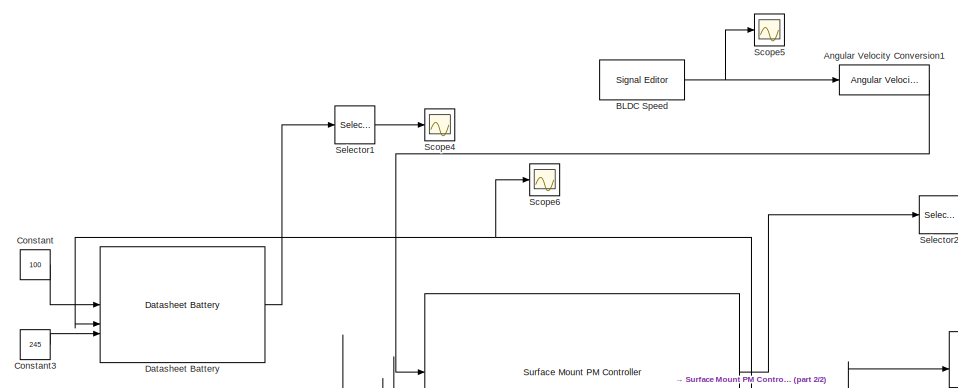
[diagram: root canvas - part 1/2, middle left region]
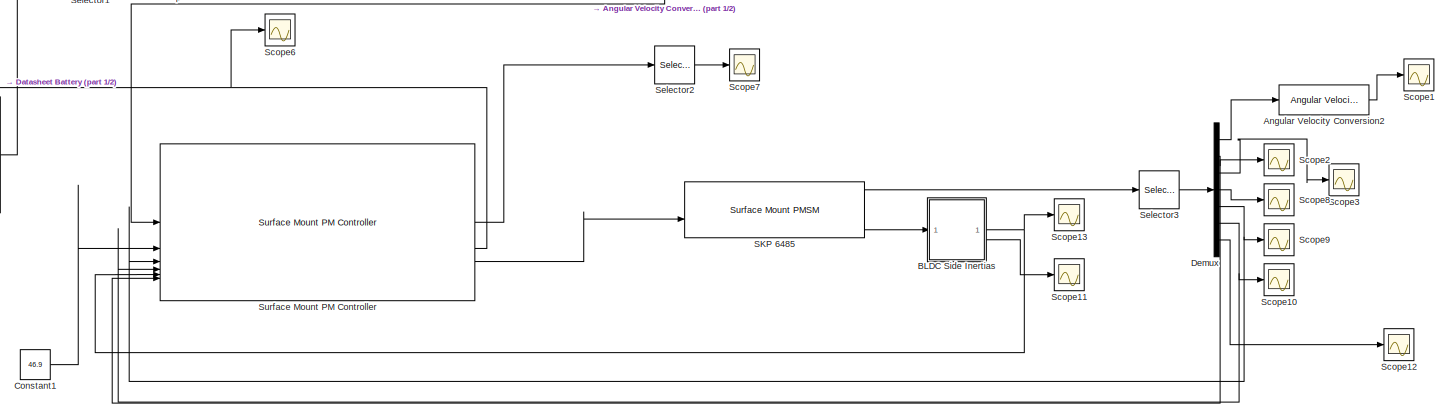
[diagram: root canvas - part 2/2, full width, middle band]
MODEL slx_b5628f9b7fa4
KIND model
CONFIG AbsTol = auto
CONFIG EnableMultiTasking = off
CONFIG FixedStep = auto
CONFIG MaxStep = auto
CONFIG MinStep = auto
CONFIG RelTol = 1e-3
CONFIG SampleTimeConstraint = Unconstrained
CONFIG SolverName = VariableStepAuto
CONFIG StartTime = 0.0
CONFIG StopTime = 65
BLOCK [Reference] Angular Velocity Conversion1  REF=aerolibconvert2/Angular Velocity
Conversion
  SourceBlock = aerolibconvert2/Angular Velocity\nConversion
  SourceType = Angular Velocity Conversion
BLOCK [Reference] Angular Velocity Conversion2  REF=aerolibconvert2/Angular Velocity
Conversion
  SourceBlock = aerolibconvert2/Angular Velocity\nConversion
  SourceType = Angular Velocity Conversion
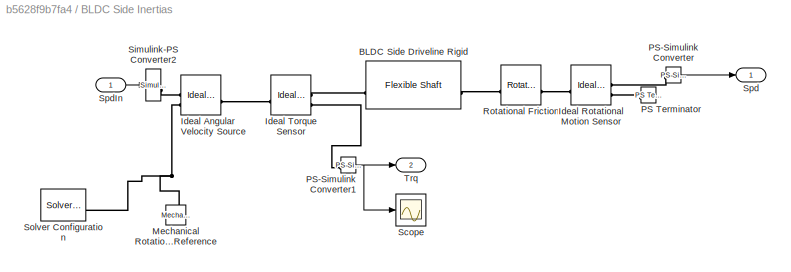
BLOCK [SubSystem] BLDC Side Inertias
BLOCK [Reference] BLDC Side Inertias/BLDC Side Driveline Rigid  REF=sdl_lib/Couplings & Drives/Flexible Shaft
  SourceBlock = sdl_lib/Couplings & Drives/Flexible Shaft
  SourceType = Flexible Shaft
BLOCK [Reference] BLDC Side Inertias/Ideal Angular Velocity Source  REF=fl_lib/Mechanical/Mechanical Sources/Ideal Angular
Velocity Source
  SourceBlock = fl_lib/Mechanical/Mechanical Sources/Ideal Angular\nVelocity Source
  SourceType = Ideal Angular\nVelocity Source
BLOCK [Reference] BLDC Side Inertias/Ideal Rotational Motion Sensor  REF=fl_lib/Mechanical/Mechanical Sensors/Ideal Rotational
Motion Sensor
  SourceBlock = fl_lib/Mechanical/Mechanical Sensors/Ideal Rotational\nMotion Sensor
  SourceType = Ideal Rotational\nMotion Sensor
BLOCK [Reference] BLDC Side Inertias/Ideal Torque Sensor  REF=fl_lib/Mechanical/Mechanical Sensors/Ideal Torque Sensor
  SourceBlock = fl_lib/Mechanical/Mechanical Sensors/Ideal Torque Sensor
  SourceType = Ideal Torque Sensor
BLOCK [Reference] BLDC Side Inertias/Mechanical Rotational Reference  REF=fl_lib/Mechanical/Rotational Elements/Mechanical
Rotational Reference
  NameLocation = right
  SourceBlock = fl_lib/Mechanical/Rotational Elements/Mechanical\nRotational Reference
  SourceType = Mechanical\nRotational Reference
BLOCK [Reference] BLDC Side Inertias/PS Terminator  REF=fl_lib/Physical Signals/Sinks/PS Terminator
  SourceBlock = fl_lib/Physical Signals/Sinks/PS Terminator
  SourceType = PS Terminator
BLOCK [Reference] BLDC Side Inertias/PS-Simulink Converter  REF=nesl_utility/PS-Simulink
Converter
  SourceBlock = nesl_utility/PS-Simulink\nConverter
  SourceType = PS-Simulink\nConverter
BLOCK [Reference] BLDC Side Inertias/PS-Simulink Converter1  REF=nesl_utility/PS-Simulink
Converter
  SourceBlock = nesl_utility/PS-Simulink\nConverter
  SourceType = PS-Simulink\nConverter
BLOCK [Reference] BLDC Side Inertias/Rotational Friction  REF=fl_lib/Mechanical/Rotational Elements/Rotational Friction
  SourceBlock = fl_lib/Mechanical/Rotational Elements/Rotational Friction
  SourceType = Rotational Friction
BLOCK [Scope] BLDC Side Inertias/Scope
  Floating = off
  NumInputPorts = 1
  ScopeSpecificationString = Simulink.scopes.TimeScopeBlockCfg('CurrentConfiguration', extmgr.ConfigurationSet(extmgr.Configuration('Core','General UI',true),extmgr.Configuration('Core','Source UI',true),extmgr.Configuration('Sources','WiredSimulink',true,'DataLoggingVariableName','ScopeData3'),extmgr.Configuration('Visuals','Time Domain',true,'SerializedDisplays',{struct('MinYLimReal','-0.14087','MaxYLimReal','1.2678','YLabe...<+1745ch>
BLOCK [Reference] BLDC Side Inertias/Simulink-PS Converter2  REF=nesl_utility/Simulink-PS
Converter
  SourceBlock = nesl_utility/Simulink-PS\nConverter
  SourceType = Simulink-PS\nConverter
BLOCK [Reference] BLDC Side Inertias/Solver Configuration  REF=nesl_utility/Solver
Configuration
  SourceBlock = nesl_utility/Solver\nConfiguration
  SourceType = Solver\nConfiguration
BLOCK [Outport] BLDC Side Inertias/Spd
BLOCK [Inport] BLDC Side Inertias/SpdIn
BLOCK [Outport] BLDC Side Inertias/Trq
  Port = 2
BLOCK [Reference] BLDC Speed  REF=SignalEditorBlockLib/Signal Editor
  LibrarySourceBlock = simulink/Sources/Signal Editor
  SourceBlock = SignalEditorBlockLib/Signal Editor
  SourceType = SignalEditor
  UserDataPersistent = on
BLOCK [Constant] Constant
  Value = 100
BLOCK [Constant] Constant1
  Value = 46.9
BLOCK [Constant] Constant3
  Value = 245
BLOCK [Reference] Datasheet Battery  REF=autolibdatasheetbattery/Datasheet Battery
  SourceBlock = autolibdatasheetbattery/Datasheet Battery
  SourceType = Datasheet Battery
BLOCK [Demux] Demux
  Outputs = 7
BLOCK [Reference] SKP 6485  REF=autolibpmsmexterior/Surface Mount PMSM
  LibrarySourceBlock = mcblib/Electrical Systems/Motors/Surface Mount PMSM
  SourceBlock = autolibpmsmexterior/Surface Mount PMSM
  SourceType = Surface Mount PMSM
BLOCK [Scope] Scope1
  Floating = off
  NumInputPorts = 1
  ScopeSpecificationString = Simulink.scopes.TimeScopeBlockCfg('CurrentConfiguration', extmgr.ConfigurationSet(extmgr.Configuration('Core','General UI',true),extmgr.Configuration('Core','Source UI',true),extmgr.Configuration('Sources','WiredSimulink',true,'DataLoggingVariableName','ScopeData2'),extmgr.Configuration('Visuals','Time Domain',true,'SerializedDisplays',{struct('MinYLimReal','-125.19021','MaxYLimReal','1126.71193',...<+1771ch>
BLOCK [Scope] Scope10
  Floating = off
  NumInputPorts = 1
  ScopeSpecificationString = Simulink.scopes.TimeScopeBlockCfg('CurrentConfiguration', extmgr.ConfigurationSet(extmgr.Configuration('Core','General UI',true),extmgr.Configuration('Core','Source UI',true),extmgr.Configuration('Sources','WiredSimulink',true,'DataLoggingVariableName','ScopeData7'),extmgr.Configuration('Visuals','Time Domain',true,'SerializedDisplays',{struct('MinYLimReal','-59.93084','MaxYLimReal','59.80767','YL...<+1708ch>
BLOCK [Scope] Scope11
  Floating = off
  NumInputPorts = 1
  ScopeSpecificationString = Simulink.scopes.TimeScopeBlockCfg('CurrentConfiguration', extmgr.ConfigurationSet(extmgr.Configuration('Core','General UI',true),extmgr.Configuration('Core','Source UI',true),extmgr.Configuration('Sources','WiredSimulink',true,'DataLoggingVariableName','ScopeData1'),extmgr.Configuration('Visuals','Time Domain',true,'SerializedDisplays',{struct('MinYLimReal','-1.56287','MaxYLimReal','2.40595','YLab...<+1757ch>
BLOCK [Scope] Scope12
  Floating = off
  NumInputPorts = 1
  ScopeSpecificationString = Simulink.scopes.TimeScopeBlockCfg('CurrentConfiguration', extmgr.ConfigurationSet(extmgr.Configuration('Core','General UI',true),extmgr.Configuration('Core','Source UI',true),extmgr.Configuration('Sources','WiredSimulink',true,'DataLoggingVariableName','ScopeData2'),extmgr.Configuration('Visuals','Time Domain',true,'SerializedDisplays',{struct('MinYLimReal','-0.14091','MaxYLimReal','1.26822','YLab...<+1744ch>
BLOCK [Scope] Scope13
  Floating = off
  NumInputPorts = 1
  ScopeSpecificationString = Simulink.scopes.TimeScopeBlockCfg('CurrentConfiguration', extmgr.ConfigurationSet(extmgr.Configuration('Core','General UI',true),extmgr.Configuration('Core','Source UI',true),extmgr.Configuration('Sources','WiredSimulink',true,'DataLoggingVariableName','ScopeData3'),extmgr.Configuration('Visuals','Time Domain',true,'SerializedDisplays',{struct('MinYLimReal','-52.70167','MaxYLimReal','471.48806','Y...<+1765ch>
BLOCK [Scope] Scope2
  Floating = off
  NumInputPorts = 1
  ScopeSpecificationString = Simulink.scopes.TimeScopeBlockCfg('CurrentConfiguration', extmgr.ConfigurationSet(extmgr.Configuration('Core','General UI',true),extmgr.Configuration('Core','Source UI',true),extmgr.Configuration('Sources','WiredSimulink',true,'DataLoggingVariableName','ScopeData3'),extmgr.Configuration('Visuals','Time Domain',true,'SerializedDisplays',{struct('MinYLimReal','-3.92699','MaxYLimReal','3.92699','YLab...<+1702ch>
BLOCK [Scope] Scope3
  Floating = off
  NumInputPorts = 1
  ScopeSpecificationString = Simulink.scopes.TimeScopeBlockCfg('CurrentConfiguration', extmgr.ConfigurationSet(extmgr.Configuration('Core','General UI',true),extmgr.Configuration('Core','Source UI',true),extmgr.Configuration('Sources','WiredSimulink',true,'DataLoggingVariableName','ScopeData4'),extmgr.Configuration('Visuals','Time Domain',true,'SerializedDisplays',{struct('MinYLimReal','-78.95847','MaxYLimReal','65.03025','YL...<+1821ch>
BLOCK [Scope] Scope4
  Floating = off
  NumInputPorts = 1
  ScopeSpecificationString = Simulink.scopes.TimeScopeBlockCfg('CurrentConfiguration', extmgr.ConfigurationSet(extmgr.Configuration('Core','General UI',true),extmgr.Configuration('Core','Source UI',true),extmgr.Configuration('Sources','WiredSimulink',true,'DataLoggingVariableName','ScopeData1'),extmgr.Configuration('Visuals','Time Domain',true,'SerializedDisplays',{struct('MinYLimReal','-1.58288','MaxYLimReal','56.45588','YLa...<+1703ch>
BLOCK [Scope] Scope5
  Floating = off
  NumInputPorts = 1
  ScopeSpecificationString = Simulink.scopes.TimeScopeBlockCfg('CurrentConfiguration', extmgr.ConfigurationSet(extmgr.Configuration('Core','General UI',true),extmgr.Configuration('Core','Source UI',true),extmgr.Configuration('Sources','WiredSimulink',true,'DataLoggingVariableName','ScopeData5'),extmgr.Configuration('Visuals','Time Domain',true,'SerializedDisplays',{struct('MinYLimReal','-500.00000','MaxYLimReal','4500.00000',...<+1412ch>
BLOCK [Scope] Scope6
  Floating = off
  NumInputPorts = 1
  ScopeSpecificationString = Simulink.scopes.TimeScopeBlockCfg('CurrentConfiguration', extmgr.ConfigurationSet(extmgr.Configuration('Core','General UI',true),extmgr.Configuration('Core','Source UI',true),extmgr.Configuration('Sources','WiredSimulink',true,'DataLoggingVariableName','ScopeData2'),extmgr.Configuration('Visuals','Time Domain',true,'SerializedDisplays',{struct('MinYLimReal','-18.84742','MaxYLimReal','36.01144','YL...<+1730ch>
BLOCK [Scope] Scope7
  Floating = off
  NumInputPorts = 1
  ScopeSpecificationString = Simulink.scopes.TimeScopeBlockCfg('CurrentConfiguration', extmgr.ConfigurationSet(extmgr.Configuration('Core','General UI',true),extmgr.Configuration('Core','Source UI',true),extmgr.Configuration('Sources','WiredSimulink',true,'DataLoggingVariableName','ScopeData3'),extmgr.Configuration('Visuals','Time Domain',true,'SerializedDisplays',{struct('MinYLimReal','-905.99318','MaxYLimReal','1704.95328',...<+1811ch>
BLOCK [Scope] Scope8
  Floating = off
  NumInputPorts = 1
  ScopeSpecificationString = Simulink.scopes.TimeScopeBlockCfg('CurrentConfiguration', extmgr.ConfigurationSet(extmgr.Configuration('Core','General UI',true),extmgr.Configuration('Core','Source UI',true),extmgr.Configuration('Sources','WiredSimulink',true,'DataLoggingVariableName','ScopeData5'),extmgr.Configuration('Visuals','Time Domain',true,'SerializedDisplays',{struct('MinYLimReal','-962.32418','MaxYLimReal','241.9719','Y...<+1728ch>
BLOCK [Scope] Scope9
  Floating = off
  NumInputPorts = 1
  ScopeSpecificationString = Simulink.scopes.TimeScopeBlockCfg('CurrentConfiguration', extmgr.ConfigurationSet(extmgr.Configuration('Core','General UI',true),extmgr.Configuration('Core','Source UI',true),extmgr.Configuration('Sources','WiredSimulink',true,'DataLoggingVariableName','ScopeData6'),extmgr.Configuration('Visuals','Time Domain',true,'SerializedDisplays',{struct('MinYLimReal','-59.84673','MaxYLimReal','59.94875','YL...<+1710ch>
BLOCK [Selector] Selector1
  IndexOptions = Index vector (dialog)
  Indices = [4]
  InputPortWidth = 8
  OutputSizes = 1
BLOCK [Selector] Selector2
  IndexOptions = Index vector (dialog)
  Indices = [1 2 3 4]
  InputPortWidth = 4
  OutputSizes = 1
BLOCK [Selector] Selector3
  IndexOptions = Index vector (dialog)
  Indices = [8 9 5 11 1 2 10]
  InputPortWidth = 15
  OutputSizes = 1
BLOCK [Reference] Surface Mount PM Controller  REF=autolibmotorctrlr/Surface Mount PM Controller
  SourceBlock = autolibmotorctrlr/Surface Mount PM Controller
  SourceType = Surface Mount PM Controller
LINE Angular Velocity Conversion1:1 -> Surface Mount PM Controller:1
LINE Angular Velocity Conversion2:1 -> Scope1:1
NET BLDC Side Inertias/PS-Simulink Converter1:1 -> BLDC Side Inertias/Scope:1, BLDC Side Inertias/Trq:1
LINE BLDC Side Inertias/PS-Simulink Converter:1 -> BLDC Side Inertias/Spd:1
LINE BLDC Side Inertias/SpdIn:1 -> BLDC Side Inertias/Simulink-PS Converter2:1
NET BLDC Side Inertias:1 -> Scope13:1, Surface Mount PM Controller:5
LINE BLDC Side Inertias:2 -> Scope11:1
NET BLDC Speed:1 -> Angular Velocity Conversion1:1, Scope5:1
LINE Constant1:1 -> Surface Mount PM Controller:2
LINE Constant3:1 -> Datasheet Battery:3
LINE Constant:1 -> Datasheet Battery:1
LINE Datasheet Battery:1 -> Selector1:1
LINE Demux:1 -> Angular Velocity Conversion2:1
NET Demux:2 -> Scope2:1, Surface Mount PM Controller:6
LINE Demux:3 -> Scope3:1
LINE Demux:4 -> Scope8:1
NET Demux:5 -> Scope9:1, Surface Mount PM Controller:3
NET Demux:6 -> Scope10:1, Surface Mount PM Controller:4
LINE Demux:7 -> Scope12:1
LINE SKP 6485:1 -> Selector3:1
LINE SKP 6485:3 -> BLDC Side Inertias:1
LINE Selector1:1 -> Scope4:1
LINE Selector2:1 -> Scope7:1
LINE Selector3:1 -> Demux:1
LINE Surface Mount PM Controller:1 -> Selector2:1
NET Surface Mount PM Controller:2 -> Datasheet Battery:2, Scope6:1
LINE Surface Mount PM Controller:3 -> SKP 6485:2
PLINE BLDC Side Inertias/BLDC Side Driveline Rigid:LConn1 -- BLDC Side Inertias/Ideal Torque Sensor:RConn1
PLINE BLDC Side Inertias/BLDC Side Driveline Rigid:RConn1 -- BLDC Side Inertias/Rotational Friction:LConn1
PLINE BLDC Side Inertias/Ideal Angular Velocity Source:LConn1 -- BLDC Side Inertias/Ideal Torque Sensor:LConn1
PLINE BLDC Side Inertias/Ideal Angular Velocity Source:RConn1 -- BLDC Side Inertias/Simulink-PS Converter2:RConn1
PNET net1: BLDC Side Inertias/Ideal Angular Velocity Source:RConn2 -- BLDC Side Inertias/Mechanical Rotational Reference:LConn1 -- BLDC Side Inertias/Solver Configuration:RConn1
PLINE BLDC Side Inertias/Ideal Rotational Motion Sensor:LConn1 -- BLDC Side Inertias/Rotational Friction:RConn1
PLINE BLDC Side Inertias/Ideal Rotational Motion Sensor:RConn1 -- BLDC Side Inertias/PS-Simulink Converter:LConn1
PLINE BLDC Side Inertias/Ideal Rotational Motion Sensor:RConn2 -- BLDC Side Inertias/PS Terminator:LConn1
PLINE BLDC Side Inertias/Ideal Torque Sensor:RConn2 -- BLDC Side Inertias/PS-Simulink Converter1:LConn1
note: NET lines group one-source signal fan-out (src -> all destinations, sorted); 1:1 wires keep LINE; PNET lines group multi-terminal physical nets as a canonical sorted terminal list (undirected conserving connections); 2-terminal nets keep the pairwise PLINE form
